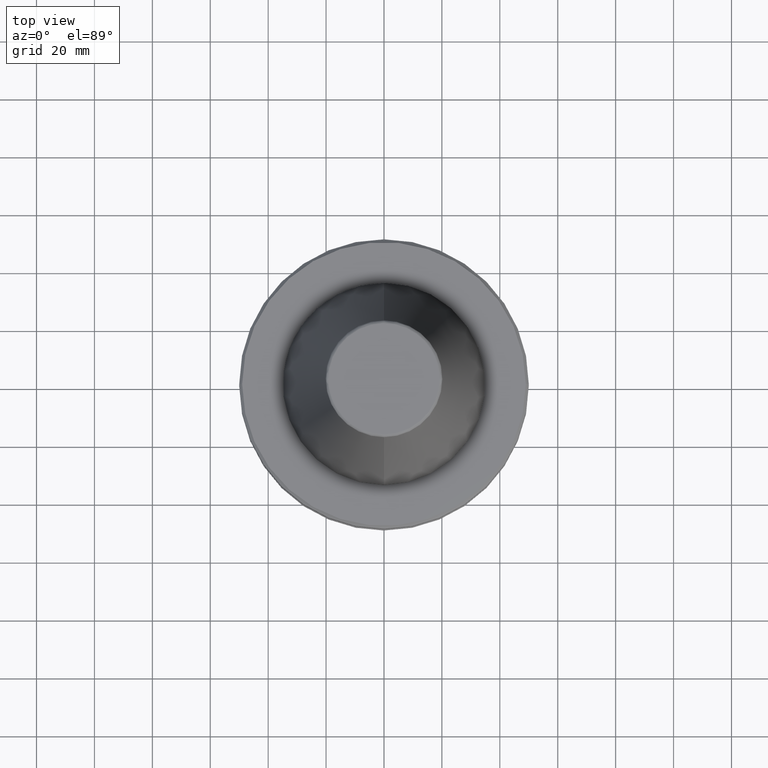
[diagram: clean part render]
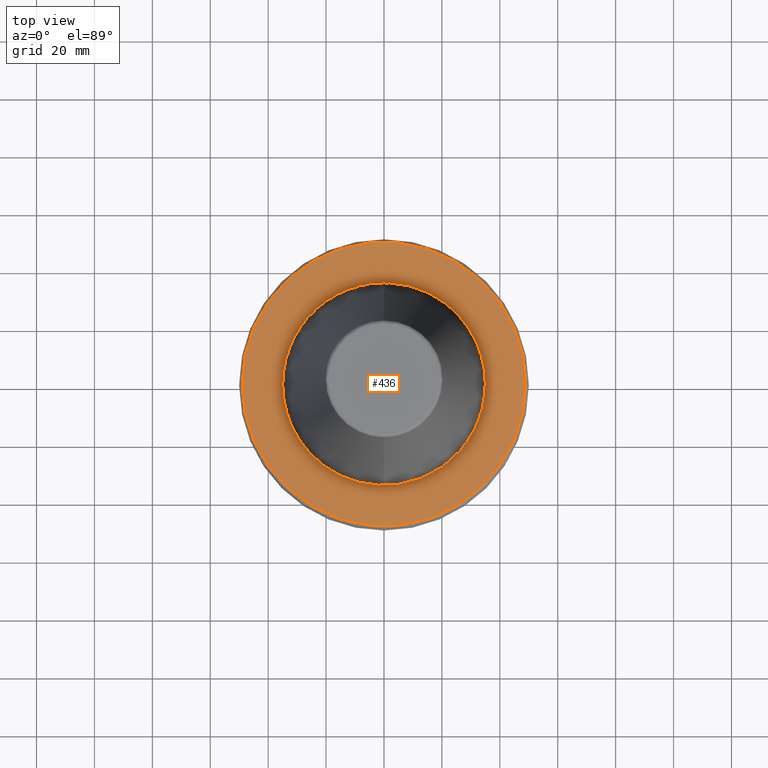
[diagram: same view with one face highlighted and labeled with its STEP entity id]
A machine part, top view. The second image highlights one B-rep face of the part: STEP entity #436.
In plain terms, the highlighted planar face has unit normal (0, 0, -1).
Its self-contained STEP definition (entity closure, byte-faithful):
#1 = CARTESIAN_POINT ( 'NONE',  ( -16.31681264913098400, -30.96391071001742300, -3.000000000000000400 ) ) ;
#2 = CARTESIAN_POINT ( 'NONE',  ( -16.20130181837652500, -31.02469293796509900, -3.000000000000000000 ) ) ;
#4 = CARTESIAN_POINT ( 'NONE',  ( -15.93105997918582300, -31.16497374094656800, -2.999999999999999600 ) ) ;
#5 = CARTESIAN_POINT ( 'NONE',  ( -15.38771003108312200, -31.43935776465695800, -2.999999999999999100 ) ) ;
#6 = CARTESIAN_POINT ( 'NONE',  ( -14.28954505599244700, -31.96341548306762100, -3.000000000000000400 ) ) ;
#7 = CARTESIAN_POINT ( 'NONE',  ( -13.32860637068289500, -32.37024724911648800, -2.999999999999999600 ) ) ;
#9 = CARTESIAN_POINT ( 'NONE',  ( -12.59807514622767900, -32.65419079164444600, -2.999999999999999600 ) ) ;
#11 = CARTESIAN_POINT ( 'NONE',  ( -12.51316340655520200, -32.68683094002342000, -3.000000000000000000 ) ) ;
#15 = CARTESIAN_POINT ( 'NONE',  ( -10.33211234674053400, -33.45352029581429300, -3.000000000000000900 ) ) ;
#17 = CARTESIAN_POINT ( 'NONE',  ( -9.306096128273511100, -33.74764709405581400, -3.000000000000000000 ) ) ;
#18 = CARTESIAN_POINT ( 'NONE',  ( -8.529045675709575400, -33.94500565136225100, -2.999999999999999600 ) ) ;
#19 = CARTESIAN_POINT ( 'NONE',  ( -31.43019403501628200, -15.39945816482536000, -3.000000000000000000 ) ) ;
#20 = CARTESIAN_POINT ( 'NONE',  ( -8.440048565543110100, -33.96724914245334000, -3.000000000000000400 ) ) ;
#21 = CARTESIAN_POINT ( 'NONE',  ( -8.264513553391283900, -34.01039078255229200, -2.999999999999999100 ) ) ;
#22 = CARTESIAN_POINT ( 'NONE',  ( -8.001012072351960200, -34.07407266311894000, -3.000000000000000000 ) ) ;
#23 = CARTESIAN_POINT ( 'NONE',  ( -7.384782543579077300, -34.21544966070211300, -3.000000000000000400 ) ) ;
#24 = CARTESIAN_POINT ( 'NONE',  ( -6.146752527308772900, -34.46934742757913700, -3.000000000000000400 ) ) ;
#25 = CARTESIAN_POINT ( 'NONE',  ( -5.076033726977992300, -34.63750626497769500, -3.000000000000000000 ) ) ;
#26 = CARTESIAN_POINT ( 'NONE',  ( -4.178462385059922300, -34.75015650729616800, -2.999999999999999600 ) ) ;
#33 = CARTESIAN_POINT ( 'NONE',  ( -3.996225051771799700, -34.77159822717918300, -2.999999999999999100 ) ) ;
#35 = CARTESIAN_POINT ( 'NONE',  ( -3.634190826210345300, -34.81131520087077300, -2.999999999999999100 ) ) ;
#38 = CARTESIAN_POINT ( 'NONE',  ( -3.090856863978451500, -34.86663586675307200, -3.000000000000000400 ) ) ;
#39 = CARTESIAN_POINT ( 'NONE',  ( -1.821099251542753100, -34.96593385789258000, -3.000000000000000400 ) ) ;
#40 = CARTESIAN_POINT ( 'NONE',  ( -0.7293440970641801300, -34.99998888586503700, -3.000000000000000400 ) ) ;
#44 = CARTESIAN_POINT ( 'NONE',  ( 1.458688194128373600, -35.00002222732811700, -3.000000000000000400 ) ) ;
#45 = CARTESIAN_POINT ( 'NONE',  ( 2.910637356120746600, -34.90923103622874600, -3.000000000000000400 ) ) ;
#47 = CARTESIAN_POINT ( 'NONE',  ( 4.538894065608880100, -34.70492588665793900, -3.000000000000000400 ) ) ;
#48 = CARTESIAN_POINT ( 'NONE',  ( -31.40727628208224300, -15.44620768847489800, -3.000000000000000900 ) ) ;
#49 = CARTESIAN_POINT ( 'NONE',  ( 4.716577416171070100, -34.68122302318685300, -3.000000000000000000 ) ) ;
#50 = CARTESIAN_POINT ( 'NONE',  ( 5.074414825710428900, -34.63069111573602800, -3.000000000000000000 ) ) ;
#55 = CARTESIAN_POINT ( 'NONE',  ( 5.610407586831293300, -34.55076478275460500, -3.000000000000000000 ) ) ;
#58 = CARTESIAN_POINT ( 'NONE',  ( 6.855713890462732600, -34.33537070316143800, -3.000000000000000000 ) ) ;
#61 = CARTESIAN_POINT ( 'NONE',  ( 7.913959055317271800, -34.10120554470484000, -3.000000000000000400 ) ) ;
#62 = CARTESIAN_POINT ( 'NONE',  ( 8.703062809829111400, -33.90081084503112400, -3.000000000000000400 ) ) ;
#64 = CARTESIAN_POINT ( 'NONE',  ( 8.787877669925039800, -33.87892242718853500, -3.000000000000000000 ) ) ;
#65 = CARTESIAN_POINT ( 'NONE',  ( 8.960064383621546100, -33.83379725612208900, -2.999999999999999600 ) ) ;
#67 = CARTESIAN_POINT ( 'NONE',  ( 9.218038112821140800, -33.76513882404014300, -3.000000000000000400 ) ) ;
#68 = CARTESIAN_POINT ( 'NONE',  ( 9.817832424870530900, -33.59814108747279700, -3.000000000000000400 ) ) ;
#69 = CARTESIAN_POINT ( 'NONE',  ( 11.00884349130415200, -33.23696670083341300, -3.000000000000000000 ) ) ;
#70 = CARTESIAN_POINT ( 'NONE',  ( 12.01500573510698000, -32.88079623199174500, -3.000000000000000900 ) ) ;
#72 = CARTESIAN_POINT ( 'NONE',  ( 12.76227522567467300, -32.59037216878505200, -3.000000000000000400 ) ) ;
#73 = CARTESIAN_POINT ( 'NONE',  ( 12.84137432955967900, -32.55928314894305200, -3.000000000000000900 ) ) ;
#75 = CARTESIAN_POINT ( 'NONE',  ( 13.00310114223340600, -32.49503895034361300, -3.000000000000000400 ) ) ;
#78 = CARTESIAN_POINT ( 'NONE',  ( -22.12541106132134400, -27.12328015341382000, -3.000000000000000000 ) ) ;
#79 = CARTESIAN_POINT ( 'NONE',  ( 13.24528912663631900, -32.39778681404331500, -2.999999999999999600 ) ) ;
#81 = AXIS2_PLACEMENT_3D ( 'NONE', #1294, #1033, #1037 ) ;
#83 = CARTESIAN_POINT ( 'NONE',  ( 13.80757878132265600, -32.16466429386797200, -2.999999999999999600 ) ) ;
#84 = CARTESIAN_POINT ( 'NONE',  ( 14.92089552168023500, -31.67361577828537000, -3.000000000000000000 ) ) ;
#86 = DIRECTION ( 'NONE',  ( 0.0000000000000000000, 0.0000000000000000000, -1.000000000000000000 ) ) ;
#87 = CARTESIAN_POINT ( 'NONE',  ( 15.85585975224651800, -31.21019680738842800, -3.000000000000000900 ) ) ;
#89 = CARTESIAN_POINT ( 'NONE',  ( 16.50900876445681900, -30.86186269924389000, -2.999999999999999100 ) ) ;
#90 = EDGE_CURVE ( 'NONE', #263, #1032, #985, .T. ) ;
#91 = CARTESIAN_POINT ( 'NONE',  ( 16.54406685764202600, -30.84308244733974300, -3.000000000000000000 ) ) ;
#93 = CARTESIAN_POINT ( 'NONE',  ( 16.61741978276733500, -30.80362924646071600, -3.000000000000000000 ) ) ;
#95 = CARTESIAN_POINT ( 'NONE',  ( 16.72732347226539300, -30.74426673782285800, -3.000000000000000000 ) ) ;
#96 = CARTESIAN_POINT ( 'NONE',  ( 16.98288552709809500, -30.60447526643263300, -3.000000000000000400 ) ) ;
#98 = CARTESIAN_POINT ( 'NONE',  ( 17.49049008744578500, -30.31977651871130800, -3.000000000000000000 ) ) ;
#100 = CARTESIAN_POINT ( 'NONE',  ( 18.49162101087045000, -29.72991580350510400, -3.000000000000000400 ) ) ;
#103 = CARTESIAN_POINT ( 'NONE',  ( 20.43757006863674200, -28.46834149403862600, -3.000000000000000000 ) ) ;
#104 = CARTESIAN_POINT ( 'NONE',  ( 22.00899019400845800, -27.24667286468887200, -3.000000000000001300 ) ) ;
#105 = CARTESIAN_POINT ( 'NONE',  ( 23.02939719805747400, -26.35616285953667800, -2.999999999999999600 ) ) ;
#108 = CARTESIAN_POINT ( 'NONE',  ( 23.04259779421425900, -26.34462197110879000, -2.999999999999999600 ) ) ;
#110 = CARTESIAN_POINT ( 'NONE',  ( -33.34820381990719800, -10.63058258967903700, -3.000000000000000400 ) ) ;
#112 = CARTESIAN_POINT ( 'NONE',  ( 23.07146250265448700, -26.31934884647105100, -2.999999999999999100 ) ) ;
#115 = CARTESIAN_POINT ( 'NONE',  ( 23.11472510830523300, -26.28140707723003900, -3.000000000000000400 ) ) ;
#116 = CARTESIAN_POINT ( 'NONE',  ( 23.21542998908966700, -26.19265170634334100, -3.000000000000000400 ) ) ;
#117 = CARTESIAN_POINT ( 'NONE',  ( 23.41587495438947600, -26.01424266060606500, -3.000000000000000900 ) ) ;
#118 = CARTESIAN_POINT ( 'NONE',  ( 23.81290569991274700, -25.65383135327589400, -3.000000000000000400 ) ) ;
#119 = CARTESIAN_POINT ( 'NONE',  ( 24.59153045065387000, -24.91863587519317500, -3.000000000000000000 ) ) ;
#120 = CARTESIAN_POINT ( 'NONE',  ( 26.08703299091450800, -23.39075346533816100, -3.000000000000000400 ) ) ;
#121 = CARTESIAN_POINT ( 'NONE',  ( 27.26304037761514100, -21.98258319342317800, -3.000000000000000900 ) ) ;
#122 = CARTESIAN_POINT ( 'NONE',  ( -11.51154192795338600, -33.05615376799148200, -3.000000000000000400 ) ) ;
#125 = CARTESIAN_POINT ( 'NONE',  ( 28.01151499236742000, -20.98464713741145400, -3.000000000000000000 ) ) ;
#133 = CARTESIAN_POINT ( 'NONE',  ( 28.02081961552850900, -20.97222000887952100, -2.999999999999999600 ) ) ;
#134 = CARTESIAN_POINT ( 'NONE',  ( 28.04160634720194500, -20.94441984864047900, -3.000000000000000900 ) ) ;
#135 = CARTESIAN_POINT ( 'NONE',  ( 28.07275355915129800, -20.90269943897495600, -2.999999999999999600 ) ) ;
#139 = CARTESIAN_POINT ( 'NONE',  ( 28.14520018810765500, -20.80521063127349600, -3.000000000000000000 ) ) ;
#141 = CARTESIAN_POINT ( 'NONE',  ( 28.28917265031858400, -20.60966827527617100, -3.000000000000000400 ) ) ;
#142 = CARTESIAN_POINT ( 'NONE',  ( 28.57343439193305200, -20.21632460090400600, -3.000000000000000400 ) ) ;
#145 = CARTESIAN_POINT ( 'NONE',  ( 29.12722514393267300, -19.42060140264944900, -3.000000000000000400 ) ) ;
#146 = CARTESIAN_POINT ( 'NONE',  ( 30.17587572301453100, -17.79301160809964700, -3.000000000000000000 ) ) ;
#148 = CARTESIAN_POINT ( 'NONE',  ( 30.97369463379775600, -16.33597453041573600, -2.999999999999999600 ) ) ;
#150 = CARTESIAN_POINT ( 'NONE',  ( 31.46828321035928500, -15.32147090344051700, -3.000000000000001300 ) ) ;
#153 = CARTESIAN_POINT ( 'NONE',  ( 31.47425896893680500, -15.30919001070397400, -3.000000000000000400 ) ) ;
#154 = CARTESIAN_POINT ( 'NONE',  ( 31.48781504734417400, -15.28129018973698700, -3.000000000000000400 ) ) ;
#156 = CARTESIAN_POINT ( 'NONE',  ( 31.50812042976106800, -15.23942927816337100, -3.000000000000000400 ) ) ;
#160 = CARTESIAN_POINT ( 'NONE',  ( 31.55529850904122900, -15.14167555696295700, -3.000000000000000400 ) ) ;
#161 = CARTESIAN_POINT ( 'NONE',  ( 31.64885008216446800, -14.94585507111428200, -3.000000000000000000 ) ) ;
#162 = CARTESIAN_POINT ( 'NONE',  ( 31.83273488666294100, -14.55296192562539300, -3.000000000000000000 ) ) ;
#164 = CARTESIAN_POINT ( 'NONE',  ( 32.18763112866766100, -13.76216693948169800, -3.000000000000000400 ) ) ;
#165 = CARTESIAN_POINT ( 'NONE',  ( 32.84593014470811300, -12.16054218653049900, -2.999999999999999100 ) ) ;
#166 = CARTESIAN_POINT ( 'NONE',  ( 33.32191192765318300, -10.75337563143434500, -3.000000000000000000 ) ) ;
#167 = CARTESIAN_POINT ( 'NONE',  ( 33.60434512392721000, -9.785103505669560800, -3.000000000000000400 ) ) ;
#168 = CARTESIAN_POINT ( 'NONE',  ( 33.60769513102027900, -9.773589787781064700, -3.000000000000000400 ) ) ;
#170 = CARTESIAN_POINT ( 'NONE',  ( 33.61536653871440400, -9.747174476289032400, -3.000000000000000400 ) ) ;
#172 = CARTESIAN_POINT ( 'NONE',  ( 33.62684992476015800, -9.707546409689978600, -3.000000000000000400 ) ) ;
#174 = CARTESIAN_POINT ( 'NONE',  ( 33.65347841373202400, -9.615045225431767800, -3.000000000000000000 ) ) ;
#177 = CARTESIAN_POINT ( 'NONE',  ( 33.70607107780303800, -9.429900074807077800, -3.000000000000000400 ) ) ;
#179 = CARTESIAN_POINT ( 'NONE',  ( 33.80859915045408600, -9.059038645124584100, -3.000000000000000400 ) ) ;
#182 = CARTESIAN_POINT ( 'NONE',  ( 34.00302627379229400, -8.315031272027104200, -3.000000000000000000 ) ) ;
#183 = CARTESIAN_POINT ( 'NONE',  ( 34.34936443261315700, -6.817878470902364500, -3.000000000000000400 ) ) ;
#185 = CARTESIAN_POINT ( 'NONE',  ( 34.57334098956435800, -5.518939404344315000, -3.000000000000000400 ) ) ;
#187 = CARTESIAN_POINT ( 'NONE',  ( 34.69209242963562900, -4.632378297428514800, -3.000000000000000900 ) ) ;
#188 = CARTESIAN_POINT ( 'NONE',  ( 34.69348558401766500, -4.621929964621081400, -3.000000000000000400 ) ) ;
#189 = CARTESIAN_POINT ( 'NONE',  ( 34.69668677893719200, -4.597840932822943000, -2.999999999999999600 ) ) ;
#190 = CARTESIAN_POINT ( 'NONE',  ( 34.70146966662205300, -4.561706087779882100, -3.000000000000000400 ) ) ;
#192 = CARTESIAN_POINT ( 'NONE',  ( 34.71249740502592100, -4.477382367925181400, -3.000000000000000400 ) ) ;
#193 = CARTESIAN_POINT ( 'NONE',  ( 34.73402355039023300, -4.308698602531989300, -3.000000000000000000 ) ) ;
#194 = CARTESIAN_POINT ( 'NONE',  ( 34.77495851534536100, -3.971185769010691300, -3.000000000000000000 ) ) ;
#196 = CARTESIAN_POINT ( 'NONE',  ( 34.84835914216141400, -3.295578891028354100, -3.000000000000000000 ) ) ;
#197 = CARTESIAN_POINT ( 'NONE',  ( 34.96128318341691000, -1.942040291304626000, -3.000000000000000400 ) ) ;
#205 = CARTESIAN_POINT ( 'NONE',  ( 34.99999999746264500, 0.0000000000000000000, -3.000000000159716700 ) ) ;
#208 = CARTESIAN_POINT ( 'NONE',  ( -34.68865228381440600, -4.658064510570269200, -3.000000000000001300 ) ) ;
#210 = CARTESIAN_POINT ( 'NONE',  ( 34.99999999756165200, -0.7778789022402620200, -3.000000000000000400 ) ) ;
#216 = DIRECTION ( 'NONE',  ( -1.000000000000000000, 0.0000000000000000000, 0.0000000000000000000 ) ) ;
#217 = DIRECTION ( 'NONE',  ( 0.0000000000000000000, 0.0000000000000000000, -1.000000000000000000 ) ) ;
#219 = CARTESIAN_POINT ( 'NONE',  ( 0.0000000000000000000, 0.0000000000000000000, -2.999999998368790200 ) ) ;
#230 = FACE_BOUND ( 'NONE', #330, .T. ) ;
#239 = CARTESIAN_POINT ( 'NONE',  ( -27.34504911193762300, -21.84998383306892900, -3.000000000000000000 ) ) ;
#263 = VERTEX_POINT ( 'NONE', #897 ) ;
#266 = CARTESIAN_POINT ( 'NONE',  ( -12.34676743546907200, -32.75005218168156800, -3.000000000000000900 ) ) ;
#271 = CARTESIAN_POINT ( 'NONE',  ( -31.24523745608797000, -15.77247123738006700, -3.000000000000000900 ) ) ;
#319 = CARTESIAN_POINT ( 'NONE',  ( -22.90369262083002900, -26.46552993239669500, -3.000000000000000000 ) ) ;
#324 = CARTESIAN_POINT ( 'NONE',  ( -30.56940405858319200, -17.06067200485967600, -3.000000000000000400 ) ) ;
#325 = CARTESIAN_POINT ( 'NONE',  ( -34.99999999756165900, -1.555353261112772900, -3.000000000000000900 ) ) ;
#330 = EDGE_LOOP ( 'NONE', ( #1221, #1321 ) ) ;
#335 = CARTESIAN_POINT ( 'NONE',  ( -34.45741785918716000, -6.166985756922089800, -3.000000000000000400 ) ) ;
#354 = CARTESIAN_POINT ( 'NONE',  ( 34.99999999746264500, 0.0000000000000000000, -3.000000000159716700 ) ) ;
#356 = AXIS2_PLACEMENT_3D ( 'NONE', #219, #217, #216 ) ;
#379 = CARTESIAN_POINT ( 'NONE',  ( -16.39375162511677100, -30.92324213942722700, -3.000000000000000000 ) ) ;
#394 = CARTESIAN_POINT ( 'NONE',  ( -19.34754944742795900, -29.22008181521108500, -3.000000000000000400 ) ) ;
#396 = CARTESIAN_POINT ( 'NONE',  ( -31.45387465059782500, -15.35102686285475600, -3.000000000000000000 ) ) ;
#423 = CARTESIAN_POINT ( 'NONE',  ( -31.02488020688020100, -16.20486765820944100, -3.000000000000000900 ) ) ;
#436 = ADVANCED_FACE ( 'NONE', ( #1352, #230 ), #754, .F. ) ;
#449 = CARTESIAN_POINT ( 'NONE',  ( -21.21829034195089400, -27.84945566702257500, -3.000000000000000000 ) ) ;
#459 = ORIENTED_EDGE ( 'NONE', *, *, #1208, .F. ) ;
#492 = B_SPLINE_CURVE_WITH_KNOTS ( 'NONE', 3,
 ( #205, #210, #197, #196, #194, #193, #192, #190, #189, #188, #187, #185, #183, #182, #179, #177, #174, #172, #170, #168, #167, #166, #165, #164, #162, #161, #160, #156, #154, #153, #150, #148, #146, #145, #142, #141, #139, #135, #134, #133, #125, #121, #120, #119, #118, #117, #116, #115, #112, #108, #105, #104, #103, #100, #98, #96, #95, #93, #91, #89, #87, #84, #83, #79, #75, #73, #72, #70, #69, #68, #67, #65, #64, #62, #61, #58, #55, #50, #49, #47, #45, #44, #40, #39, #38, #35, #33, #26, #25, #24, #23, #22, #21, #20, #18, #17, #15, #122, #939, #266, #11, #9, #7, #6, #5, #4, #2, #1, #379, #768, #990, #394, #449, #78, #630, #494, #319, #816, #937, #1318, #1393, #1243, #728, #239, #1189, #1101, #879, #1394, #1055, #552, #1396, #1285, #324, #423, #271, #1091, #48, #19, #1330, #396, #1327, #1234, #621, #110, #1273, #1210, #1119, #1063, #547, #1348, #1185, #846, #335, #688, #894, #1412, #1197, #1065, #946, #208, #992, #325, #1095 ),
 .UNSPECIFIED., .F., .F.,
 ( 4, 1, 1, 1, 1, 1, 1, 2, 2, 1, 1, 1, 1, 1, 1, 2, 2, 1, 1, 1, 1, 1, 1, 2, 2, 1, 1, 1, 1, 1, 1, 2, 2, 1, 1, 1, 1, 1, 1, 2, 2, 1, 1, 1, 1, 1, 2, 2, 1, 1, 1, 2, 2, 1, 1, 1, 2, 2, 1, 1, 2, 2, 2, 1, 1, 2, 2, 1, 1, 1, 2, 2, 1, 1, 1, 2, 2, 1, 1, 1, 1, 2, 2, 1, 1, 1, 1, 1, 1, 2, 2, 1, 1, 1, 1, 1, 1, 2, 2, 1, 1, 1, 1, 1, 1, 2, 2, 1, 1, 1, 1, 1, 1, 2, 2, 1, 1, 1, 1, 1, 1, 2, 2, 4 ),
 ( 0.0000000000000000000, 0.03124999999999482400, 0.04687499999999222800, 0.05468749999999091000, 0.05859374999999027200, 0.06054687499998995900, 0.06152343749998975800, 0.06201171874998963300, 0.06249999999998950100, 0.09374999999998083500, 0.1093749999999765300, 0.1171874999999743700, 0.1210937499999733000, 0.1230468749999727400, 0.1240234374999725100, 0.1245117187499723600, 0.1249999999999722000, 0.1562499999999600900, 0.1718749999999539300, 0.1796874999999508200, 0.1835937499999492400, 0.1855468749999484900, 0.1865234374999481000, 0.1870117187499479900, 0.1874999999999478800, 0.2187499999999437700, 0.2343749999999417400, 0.2421874999999407700, 0.2460937499999402700, 0.2480468749999401000, 0.2490234374999400500, 0.2495117187499400500, 0.2499999999999400500, 0.2812499999999426000, 0.2968749999999438800, 0.3046874999999445400, 0.3085937499999448200, 0.3105468749999449900, 0.3115234374999451000, 0.3120117187499452100, 0.3124999999999453200, 0.3437499999999515400, 0.3593749999999547600, 0.3671874999999563100, 0.3710937499999572000, 0.3730468749999575900, 0.3740234374999578100, 0.3749999999999580300, 0.3906249999999613100, 0.3984374999999629700, 0.4023437499999637500, 0.4042968749999642000, 0.4062499999999645800, 0.4218749999999681900, 0.4296874999999700200, 0.4335937499999709100, 0.4355468749999713600, 0.4374999999999718000, 0.4531249999999754600, 0.4609374999999773000, 0.4648437499999781800, 0.4687499999999790700, 0.4999999999999863400, 0.5156249999999900100, 0.5234374999999917800, 0.5273437499999926700, 0.5312499999999935600, 0.5468749999999972200, 0.5546874999999990000, 0.5585937500000000000, 0.5605468750000004400, 0.5625000000000008900, 0.5781250000000043300, 0.5859375000000062200, 0.5898437500000071100, 0.5917968750000075500, 0.5937500000000079900, 0.6093750000000118800, 0.6171875000000137700, 0.6210937500000147700, 0.6230468750000152100, 0.6240234375000155400, 0.6250000000000157700, 0.6562500000000222000, 0.6718750000000255400, 0.6796875000000270900, 0.6835937500000278700, 0.6855468750000283100, 0.6865234375000286400, 0.6870117187500287500, 0.6875000000000288700, 0.7187500000000341900, 0.7343750000000367500, 0.7421875000000380800, 0.7460937500000386400, 0.7480468750000389700, 0.7490234375000390800, 0.7495117187500391900, 0.7500000000000391900, 0.7812500000000373000, 0.7968750000000364200, 0.8046875000000359700, 0.8085937500000358600, 0.8105468750000357500, 0.8115234375000355300, 0.8120117187500354200, 0.8125000000000354200, 0.8437500000000286400, 0.8593750000000253100, 0.8671875000000235400, 0.8710937500000226500, 0.8730468750000220900, 0.8740234375000218700, 0.8745117187500217600, 0.8750000000000216500, 0.9062500000000155400, 0.9218750000000124300, 0.9296875000000107700, 0.9335937500000099900, 0.9355468750000095500, 0.9365234375000094400, 0.9370117187500093300, 0.9375000000000092100, 1.000000000000000000 ),
 .UNSPECIFIED. ) ;
#494 = CARTESIAN_POINT ( 'NONE',  ( -22.79339234489685100, -26.56077120091968500, -3.000000000000000400 ) ) ;
#503 = CARTESIAN_POINT ( 'NONE',  ( 34.63737523278182100, 5.027367414831864800, -3.000000000000000400 ) ) ;
#512 = CARTESIAN_POINT ( 'NONE',  ( -34.69348558401767900, 4.621929964621086700, -3.000000000000000000 ) ) ;
#547 = CARTESIAN_POINT ( 'NONE',  ( -33.59130476667781600, -9.829777798166716700, -3.000000000000002200 ) ) ;
#552 = CARTESIAN_POINT ( 'NONE',  ( -27.98958195459307800, -21.01389114367906400, -3.000000000000000000 ) ) ;
#571 = CIRCLE ( 'NONE', #767, 48.99999999836879300 ) ;
#614 = VERTEX_POINT ( 'NONE', #651 ) ;
#621 = CARTESIAN_POINT ( 'NONE',  ( -33.07921083033410500, -11.45456747856882600, -3.000000000000000900 ) ) ;
#630 = CARTESIAN_POINT ( 'NONE',  ( -22.57190898903378000, -26.74997678673083400, -3.000000000000000000 ) ) ;
#644 = CIRCLE ( 'NONE', #356, 48.99999999836879300 ) ;
#648 = CARTESIAN_POINT ( 'NONE',  ( -9.817832424864025900, 33.59814108747288900, -3.000000000000001300 ) ) ;
#651 = CARTESIAN_POINT ( 'NONE',  ( -48.99999999836879300, 0.0000000000000000000, -2.999999998368790200 ) ) ;
#688 = CARTESIAN_POINT ( 'NONE',  ( -34.58093721138162400, -5.407978663006394600, -3.000000000000000000 ) ) ;
#714 = CARTESIAN_POINT ( 'NONE',  ( 34.68292355065506200, 4.700540735750390600, -3.000000000000000400 ) ) ;
#718 = CARTESIAN_POINT ( 'NONE',  ( 34.68660639622289200, 4.673281689959345900, -3.000000000000000000 ) ) ;
#728 = CARTESIAN_POINT ( 'NONE',  ( -26.66946449319050000, -22.68085943477386800, -3.000000000000000400 ) ) ;
#749 = CARTESIAN_POINT ( 'NONE',  ( 21.21829034200436200, 27.84945566697591300, -3.000000000000000400 ) ) ;
#754 = PLANE ( 'NONE',  #81 ) ;
#767 = AXIS2_PLACEMENT_3D ( 'NONE', #821, #86, #910 ) ;
#768 = CARTESIAN_POINT ( 'NONE',  ( -16.43381908408043300, -30.90196383169872600, -2.999999999999999600 ) ) ;
#776 = CARTESIAN_POINT ( 'NONE',  ( 34.99999999756165200, 1.555353261179500700, -3.000000000000000400 ) ) ;
#780 = CARTESIAN_POINT ( 'NONE',  ( 7.384782543475078700, 34.21544966071439800, -3.000000000000000400 ) ) ;
#788 = CARTESIAN_POINT ( 'NONE',  ( 5.076033726898763200, 34.63750626498704600, -3.000000000000000400 ) ) ;
#789 = CARTESIAN_POINT ( 'NONE',  ( 34.58093721136781100, 5.407978663080713800, -3.000000000000001300 ) ) ;
#793 = CARTESIAN_POINT ( 'NONE',  ( 10.33211234654035800, 33.45352029588369200, -3.000000000000000400 ) ) ;
#799 = CARTESIAN_POINT ( 'NONE',  ( -34.77495851534537500, 3.971185769010713100, -3.000000000000000000 ) ) ;
#804 = CARTESIAN_POINT ( 'NONE',  ( 12.59807514622550300, 32.65419079164473000, -3.000000000000000400 ) ) ;
#809 = CARTESIAN_POINT ( 'NONE',  ( 33.47625151031750300, 10.21611600741511000, -2.999999999999999600 ) ) ;
#813 = CARTESIAN_POINT ( 'NONE',  ( 6.146752527170146900, 34.46934742759548700, -3.000000000000000000 ) ) ;
#816 = CARTESIAN_POINT ( 'NONE',  ( -22.95086958151608800, -26.42457542968310600, -2.999999999999999600 ) ) ;
#820 = CARTESIAN_POINT ( 'NONE',  ( -31.50812042976355100, 15.23942927815674500, -2.999999999999999600 ) ) ;
#821 = CARTESIAN_POINT ( 'NONE',  ( 0.0000000000000000000, 0.0000000000000000000, -2.999999998368790200 ) ) ;
#832 = CARTESIAN_POINT ( 'NONE',  ( -34.69668677893720600, 4.597840932822951000, -3.000000000000000000 ) ) ;
#840 = CARTESIAN_POINT ( 'NONE',  ( 9.306096128159152800, 33.74764709409547000, -3.000000000000000000 ) ) ;
#846 = CARTESIAN_POINT ( 'NONE',  ( -34.16780591728135600, -7.676138334701414000, -3.000000000000000400 ) ) ;
#850 = CARTESIAN_POINT ( 'NONE',  ( -12.01500573510202200, 32.88079623199179500, -3.000000000000000400 ) ) ;
#858 = CARTESIAN_POINT ( 'NONE',  ( -14.92089552162903000, 31.67361577830848100, -3.000000000000000000 ) ) ;
#862 = CARTESIAN_POINT ( 'NONE',  ( -33.70607107780457300, 9.429900074795433800, -2.999999999999999100 ) ) ;
#863 = CARTESIAN_POINT ( 'NONE',  ( 22.12541106135253700, 27.12328015338661700, -3.000000000000000400 ) ) ;
#870 = CARTESIAN_POINT ( 'NONE',  ( -33.80859915045699200, 9.059038645102841500, -2.999999999999999600 ) ) ;
#874 = CARTESIAN_POINT ( 'NONE',  ( 33.07921083030966300, 11.45456747860047900, -3.000000000000000900 ) ) ;
#876 = CARTESIAN_POINT ( 'NONE',  ( 33.59614711628069000, 9.813210838103486800, -3.000000000000000400 ) ) ;
#877 = CARTESIAN_POINT ( 'NONE',  ( 34.45741785916345600, 6.166985757049483000, -3.000000000000000400 ) ) ;
#879 = CARTESIAN_POINT ( 'NONE',  ( -27.91925954473984800, -21.10729296038182000, -3.000000000000000900 ) ) ;
#894 = CARTESIAN_POINT ( 'NONE',  ( -34.63737523278923200, -5.027367414792062000, -2.999999999999999600 ) ) ;
#897 = CARTESIAN_POINT ( 'NONE',  ( -34.99999999746264500, 0.0000000000000000000, -3.000000000159716700 ) ) ;
#906 = CARTESIAN_POINT ( 'NONE',  ( -13.80757878128427800, 32.16466429388529500, -3.000000000000000000 ) ) ;
#910 = DIRECTION ( 'NONE',  ( -1.000000000000000000, 0.0000000000000000000, 0.0000000000000000000 ) ) ;
#924 = CARTESIAN_POINT ( 'NONE',  ( 33.84658441702918500, 8.954506355662980300, -3.000000000000000000 ) ) ;
#926 = CARTESIAN_POINT ( 'NONE',  ( -28.01151499236678400, 20.98464713741218500, -3.000000000000000000 ) ) ;
#927 = CARTESIAN_POINT ( 'NONE',  ( 34.68865228381437800, 4.658064510569746000, -3.000000000000000400 ) ) ;
#928 = CARTESIAN_POINT ( 'NONE',  ( 34.89675515984234300, 3.104025827537335100, -3.000000000000000400 ) ) ;
#937 = CARTESIAN_POINT ( 'NONE',  ( -22.98229986949732500, -26.39724202427322900, -2.999999999999999600 ) ) ;
#938 = CARTESIAN_POINT ( 'NONE',  ( 33.56946592622532000, 9.904183635402265700, -3.000000000000000400 ) ) ;
#939 = CARTESIAN_POINT ( 'NONE',  ( -12.09685938347682200, -32.84391585494481800, -3.000000000000000400 ) ) ;
#941 = CARTESIAN_POINT ( 'NONE',  ( -34.70146966662203200, 4.561706087779892700, -3.000000000000000400 ) ) ;
#942 = CARTESIAN_POINT ( 'NONE',  ( 22.57190898905051000, 26.74997678671626700, -3.000000000000001300 ) ) ;
#946 = CARTESIAN_POINT ( 'NONE',  ( -34.68660639622348200, -4.673281689956323400, -3.000000000000001800 ) ) ;
#948 = CARTESIAN_POINT ( 'NONE',  ( -23.41587495440640500, 26.01424266058695900, -3.000000000000000400 ) ) ;
#950 = CARTESIAN_POINT ( 'NONE',  ( -23.81290569994435600, 25.65383135324021400, -3.000000000000000400 ) ) ;
#954 = CARTESIAN_POINT ( 'NONE',  ( -20.43757006867235800, 28.46834149402769000, -3.000000000000000000 ) ) ;
#955 = CARTESIAN_POINT ( 'NONE',  ( 31.44545057023151500, 15.36827843998939100, -3.000000000000000000 ) ) ;
#957 = CARTESIAN_POINT ( 'NONE',  ( 31.43019403501644900, 15.39945816482603100, -2.999999999999999600 ) ) ;
#960 = CARTESIAN_POINT ( 'NONE',  ( -4.538894065589937000, 34.70492588665914000, -3.000000000000000000 ) ) ;
#965 = CARTESIAN_POINT ( 'NONE',  ( -34.71249740502592800, 4.477382367925177000, -2.999999999999999100 ) ) ;
#966 = CARTESIAN_POINT ( 'NONE',  ( -34.73402355039023300, 4.308698602532002700, -3.000000000000000000 ) ) ;
#976 = ORIENTED_EDGE ( 'NONE', *, *, #1324, .F. ) ;
#977 = CARTESIAN_POINT ( 'NONE',  ( 13.32860637070037800, 32.37024724911441400, -2.999999999999999600 ) ) ;
#983 = CARTESIAN_POINT ( 'NONE',  ( -32.18763112869785900, 13.76216693940088500, -3.000000000000000400 ) ) ;
#984 = CARTESIAN_POINT ( 'NONE',  ( -31.83273488668059100, 14.55296192557826500, -3.000000000000000000 ) ) ;
#985 = B_SPLINE_CURVE_WITH_KNOTS ( 'NONE', 3,
 ( #1290, #1109, #1398, #1427, #799, #966, #965, #941, #832, #512, #986, #1403, #1361, #1076, #870, #862, #1413, #1385, #1381, #1061, #1515, #1349, #1492, #983, #984, #1073, #1455, #820, #1292, #1391, #1510, #1460, #1447, #1454, #1514, #1161, #1159, #1362, #1248, #1250, #926, #1343, #1075, #1041, #950, #948, #1112, #1016, #1017, #1417, #1051, #1049, #954, #1225, #1228, #1177, #1419, #1420, #1400, #1432, #1435, #858, #906, #1012, #1375, #1291, #1310, #850, #1535, #648, #1130, #1486, #1370, #1356, #1410, #1406, #1083, #1178, #1176, #960, #1181, #1179, #1164, #1376, #1366, #1072, #1387, #1371, #788, #813, #780, #1449, #1358, #1422, #1054, #840, #793, #1192, #1068, #1067, #1414, #804, #977, #1444, #1277, #1278, #1281, #1438, #1354, #1415, #1497, #1390, #749, #863, #942, #1466, #1157, #1001, #1142, #1491, #1389, #1149, #1155, #1010, #1475, #1081, #1080, #1411, #1517, #1373, #1151, #1191, #1190, #1428, #1382, #1503, #1143, #957, #955, #1534, #1206, #1201, #874, #1102, #809, #1122, #938, #1202, #1472, #876, #924, #1124, #877, #789, #503, #1005, #1340, #714, #718, #927, #928, #776, #1317 ),
 .UNSPECIFIED., .F., .F.,
 ( 4, 1, 1, 1, 1, 1, 1, 2, 2, 1, 1, 1, 1, 1, 1, 2, 2, 1, 1, 1, 1, 1, 1, 2, 2, 1, 1, 1, 1, 1, 1, 2, 2, 1, 1, 1, 1, 1, 1, 2, 2, 1, 1, 1, 1, 1, 2, 2, 1, 1, 1, 2, 2, 1, 1, 1, 2, 2, 1, 1, 2, 2, 2, 1, 1, 2, 2, 1, 1, 1, 2, 2, 1, 1, 1, 2, 2, 1, 1, 1, 1, 2, 2, 1, 1, 1, 1, 1, 1, 2, 2, 1, 1, 1, 1, 1, 1, 2, 2, 1, 1, 1, 1, 1, 1, 2, 2, 1, 1, 1, 1, 1, 1, 2, 2, 1, 1, 1, 1, 1, 1, 2, 2, 4 ),
 ( 0.0000000000000000000, 0.03125000000001412100, 0.04687500000002115700, 0.05468750000002469600, 0.05859375000002648600, 0.06054687500002736000, 0.06152343750002779000, 0.06201171875002801200, 0.06250000000002822700, 0.09375000000004264600, 0.1093750000000497900, 0.1171875000000533500, 0.1210937500000551200, 0.1230468750000559400, 0.1240234375000563900, 0.1245117187500565500, 0.1250000000000567000, 0.1562500000000661100, 0.1718750000000707500, 0.1796875000000731400, 0.1835937500000743300, 0.1855468750000748800, 0.1865234375000751300, 0.1870117187500752700, 0.1875000000000753800, 0.2187500000000861300, 0.2343750000000915900, 0.2421875000000942900, 0.2460937500000955600, 0.2480468750000962000, 0.2490234375000965100, 0.2495117187500966200, 0.2500000000000967000, 0.2812500000001013100, 0.2968750000001036900, 0.3046875000001048600, 0.3085937500001054200, 0.3105468750001057500, 0.3115234375001058600, 0.3120117187501059200, 0.3125000000001059700, 0.3437500000001059700, 0.3593750000001060300, 0.3671875000001060800, 0.3710937500001061400, 0.3730468750001061900, 0.3740234375001061900, 0.3750000000001061400, 0.3906250000001063600, 0.3984375000001064100, 0.4023437500001064700, 0.4042968750001065300, 0.4062500000001065800, 0.4218750000001069100, 0.4296875000001070800, 0.4335937500001070800, 0.4355468750001071400, 0.4375000000001071900, 0.4531250000001076900, 0.4609375000001079700, 0.4648437500001081400, 0.4687500000001083000, 0.5000000000001095800, 0.5156250000001102500, 0.5234375000001104700, 0.5273437500001106900, 0.5312500000001109100, 0.5468750000001115800, 0.5546875000001119100, 0.5585937500001120200, 0.5605468750001121300, 0.5625000000001122400, 0.5781250000001129100, 0.5859375000001132400, 0.5898437500001133500, 0.5917968750001133500, 0.5937500000001133500, 0.6093750000001136900, 0.6171875000001140200, 0.6210937500001141300, 0.6230468750001141300, 0.6240234375001141300, 0.6250000000001141300, 0.6562500000001135800, 0.6718750000001134600, 0.6796875000001132400, 0.6835937500001131300, 0.6855468750001131300, 0.6865234375001131300, 0.6870117187501130200, 0.6875000000001129100, 0.7187500000001074700, 0.7343750000001048100, 0.7421875000001035800, 0.7460937500001029200, 0.7480468750001025800, 0.7490234375001023600, 0.7495117187501022500, 0.7500000000001020300, 0.7812500000000925900, 0.7968750000000878200, 0.8046875000000854900, 0.8085937500000842700, 0.8105468750000836000, 0.8115234375000832700, 0.8120117187500830400, 0.8125000000000828200, 0.8437500000000708300, 0.8593750000000648400, 0.8671875000000617300, 0.8710937500000602900, 0.8730468750000595100, 0.8740234375000591700, 0.8745117187500589500, 0.8750000000000587300, 0.9062500000000445200, 0.9218750000000375300, 0.9296875000000340800, 0.9335937500000323100, 0.9355468750000314200, 0.9365234375000309800, 0.9370117187500307500, 0.9375000000000305300, 1.000000000000000000 ),
 .UNSPECIFIED. ) ;
#986 = CARTESIAN_POINT ( 'NONE',  ( -34.69209242963556500, 4.632378297428956200, -3.000000000000000400 ) ) ;
#990 = CARTESIAN_POINT ( 'NONE',  ( -17.64720104221049700, -30.25480443532306700, -3.000000000000000900 ) ) ;
#992 = CARTESIAN_POINT ( 'NONE',  ( -34.89675515984235000, -3.104025827470608100, -3.000000000000000400 ) ) ;
#1001 = CARTESIAN_POINT ( 'NONE',  ( 22.95086958151861700, 26.42457542968090700, -3.000000000000000000 ) ) ;
#1005 = CARTESIAN_POINT ( 'NONE',  ( 34.66426382981679000, 4.836784865391325500, -3.000000000000000000 ) ) ;
#1010 = CARTESIAN_POINT ( 'NONE',  ( 27.34504911191198300, 21.84998383309130400, -3.000000000000000900 ) ) ;
#1012 = CARTESIAN_POINT ( 'NONE',  ( -13.24528912661391700, 32.39778681405341800, -3.000000000000000000 ) ) ;
#1016 = CARTESIAN_POINT ( 'NONE',  ( -23.11472510830966300, 26.28140707722504000, -3.000000000000000400 ) ) ;
#1017 = CARTESIAN_POINT ( 'NONE',  ( -23.07146250265704900, 26.31934884646817000, -2.999999999999999600 ) ) ;
#1032 = VERTEX_POINT ( 'NONE', #354 ) ;
#1033 = DIRECTION ( 'NONE',  ( 0.0000000000000000000, 0.0000000000000000000, -1.000000000000000000 ) ) ;
#1037 = DIRECTION ( 'NONE',  ( -1.000000000000000000, 0.0000000000000000000, -0.0000000000000000000 ) ) ;
#1041 = CARTESIAN_POINT ( 'NONE',  ( -24.59153045070805600, 24.91863587513200100, -3.000000000000000400 ) ) ;
#1049 = CARTESIAN_POINT ( 'NONE',  ( -22.00899019402879000, 27.24667286468263000, -3.000000000000000900 ) ) ;
#1051 = CARTESIAN_POINT ( 'NONE',  ( -23.02939719805716500, 26.35616285953678800, -3.000000000000000400 ) ) ;
#1054 = CARTESIAN_POINT ( 'NONE',  ( 8.529045675723864400, 33.94500565135729900, -2.999999999999999600 ) ) ;
#1055 = CARTESIAN_POINT ( 'NONE',  ( -27.97696584035753600, -21.03068712063004100, -3.000000000000000400 ) ) ;
#1061 = CARTESIAN_POINT ( 'NONE',  ( -33.60769513102038500, 9.773589787780176500, -2.999999999999998700 ) ) ;
#1063 = CARTESIAN_POINT ( 'NONE',  ( -33.58258074621972600, -9.859544551163168100, -3.000000000000001300 ) ) ;
#1065 = CARTESIAN_POINT ( 'NONE',  ( -34.68292355065617700, -4.700540735744379400, -3.000000000000000900 ) ) ;
#1067 = CARTESIAN_POINT ( 'NONE',  ( 12.34676743541636100, 32.75005218169986400, -2.999999999999999600 ) ) ;
#1068 = CARTESIAN_POINT ( 'NONE',  ( 12.09685938338924200, 32.84391585497520800, -3.000000000000000400 ) ) ;
#1072 = CARTESIAN_POINT ( 'NONE',  ( 3.634190826182501800, 34.81131520087480200, -3.000000000000000400 ) ) ;
#1073 = CARTESIAN_POINT ( 'NONE',  ( -31.64885008217393300, 14.94585507108901000, -3.000000000000001300 ) ) ;
#1075 = CARTESIAN_POINT ( 'NONE',  ( -26.08703299098673900, 23.39075346525657700, -3.000000000000000400 ) ) ;
#1076 = CARTESIAN_POINT ( 'NONE',  ( -34.00302627379728200, 8.315031271989862900, -3.000000000000000000 ) ) ;
#1080 = CARTESIAN_POINT ( 'NONE',  ( 27.91925954473622400, 21.10729296038496400, -2.999999999999999600 ) ) ;
#1081 = CARTESIAN_POINT ( 'NONE',  ( 27.83819668910963700, 21.21428735484020200, -3.000000000000000000 ) ) ;
#1083 = CARTESIAN_POINT ( 'NONE',  ( -5.610407586891955000, 34.55076478274080600, -3.000000000000000900 ) ) ;
#1091 = CARTESIAN_POINT ( 'NONE',  ( -31.35357087445663600, -15.55514946508928600, -2.999999999999999100 ) ) ;
#1095 = CARTESIAN_POINT ( 'NONE',  ( -34.99999999746264500, 0.0000000000000000000, -3.000000000159716700 ) ) ;
#1101 = CARTESIAN_POINT ( 'NONE',  ( -27.83819668911674200, -21.21428735483399200, -3.000000000000000900 ) ) ;
#1102 = CARTESIAN_POINT ( 'NONE',  ( 33.34820381989293700, 10.63058258969750900, -3.000000000000000000 ) ) ;
#1109 = CARTESIAN_POINT ( 'NONE',  ( -34.99999999756164500, 0.7778789022402783400, -3.000000000000000400 ) ) ;
#1112 = CARTESIAN_POINT ( 'NONE',  ( -23.21542998909843900, 26.19265170633344700, -3.000000000000000400 ) ) ;
#1119 = CARTESIAN_POINT ( 'NONE',  ( -33.56946592622733000, -9.904183635399689900, -2.999999999999999600 ) ) ;
#1122 = CARTESIAN_POINT ( 'NONE',  ( 33.53866315443801900, 10.00826418181618000, -3.000000000000000000 ) ) ;
#1124 = CARTESIAN_POINT ( 'NONE',  ( 34.16780591724972300, 7.676138334871292400, -3.000000000000000400 ) ) ;
#1130 = CARTESIAN_POINT ( 'NONE',  ( -9.218038112817332300, 33.76513882404020000, -3.000000000000000400 ) ) ;
#1142 = CARTESIAN_POINT ( 'NONE',  ( 22.98229986949861100, 26.39724202427212100, -3.000000000000000900 ) ) ;
#1143 = CARTESIAN_POINT ( 'NONE',  ( 31.40727628208248800, 15.44620768847604200, -2.999999999999999600 ) ) ;
#1149 = CARTESIAN_POINT ( 'NONE',  ( 25.25639405846648700, 24.28528594357779700, -3.000000000000000000 ) ) ;
#1151 = CARTESIAN_POINT ( 'NONE',  ( 28.66675479517620300, 20.11096679230653100, -3.000000000000000000 ) ) ;
#1155 = CARTESIAN_POINT ( 'NONE',  ( 26.66946449314657700, 22.68085943481220900, -3.000000000000000400 ) ) ;
#1157 = CARTESIAN_POINT ( 'NONE',  ( 22.90369262083444100, 26.46552993239286500, -3.000000000000000000 ) ) ;
#1159 = CARTESIAN_POINT ( 'NONE',  ( -28.14520018811466100, 20.80521063126254300, -3.000000000000000900 ) ) ;
#1161 = CARTESIAN_POINT ( 'NONE',  ( -28.28917265033212700, 20.60966827525500700, -3.000000000000000000 ) ) ;
#1164 = CARTESIAN_POINT ( 'NONE',  ( 0.7293440970311649800, 34.99998888586976900, -3.000000000000000400 ) ) ;
#1176 = CARTESIAN_POINT ( 'NONE',  ( -4.716577416192740700, 34.68122302318193600, -3.000000000000000400 ) ) ;
#1177 = CARTESIAN_POINT ( 'NONE',  ( -16.98288552710644000, 30.60447526643007500, -3.000000000000001300 ) ) ;
#1178 = CARTESIAN_POINT ( 'NONE',  ( -5.074414825749433300, 34.63069111572716000, -3.000000000000000000 ) ) ;
#1179 = CARTESIAN_POINT ( 'NONE',  ( -1.458688194062363900, 35.00002222731861000, -3.000000000000000900 ) ) ;
#1181 = CARTESIAN_POINT ( 'NONE',  ( -2.910637356272310200, 34.90923103621926100, -3.000000000000000000 ) ) ;
#1185 = CARTESIAN_POINT ( 'NONE',  ( -33.84658441704726100, -8.954506355565905900, -3.000000000000000400 ) ) ;
#1189 = CARTESIAN_POINT ( 'NONE',  ( -27.67510377166477300, -21.42738044538432600, -3.000000000000000900 ) ) ;
#1190 = CARTESIAN_POINT ( 'NONE',  ( 30.56940405858640700, 17.06067200487368800, -3.000000000000000900 ) ) ;
#1191 = CARTESIAN_POINT ( 'NONE',  ( 29.59940516246770100, 18.73632671814475600, -3.000000000000000400 ) ) ;
#1192 = CARTESIAN_POINT ( 'NONE',  ( 11.51154192780325600, 33.05615376804354400, -3.000000000000000400 ) ) ;
#1197 = CARTESIAN_POINT ( 'NONE',  ( -34.67737552491824000, -4.741424359331571900, -2.999999999999999600 ) ) ;
#1201 = CARTESIAN_POINT ( 'NONE',  ( 32.48963441620634300, 13.08274415375910500, -3.000000000000000400 ) ) ;
#1202 = CARTESIAN_POINT ( 'NONE',  ( 33.58258074621854000, 9.859544551164663800, -3.000000000000000000 ) ) ;
#1206 = CARTESIAN_POINT ( 'NONE',  ( 31.89584245851191100, 14.44439312792824400, -3.000000000000000400 ) ) ;
#1208 = EDGE_CURVE ( 'NONE', #614, #1431, #644, .T. ) ;
#1210 = CARTESIAN_POINT ( 'NONE',  ( -33.53866315444199100, -10.00826418181105900, -3.000000000000000400 ) ) ;
#1221 = ORIENTED_EDGE ( 'NONE', *, *, #90, .T. ) ;
#1225 = CARTESIAN_POINT ( 'NONE',  ( -18.49162101089715900, 29.72991580349692200, -3.000000000000000000 ) ) ;
#1228 = CARTESIAN_POINT ( 'NONE',  ( -17.49049008746136000, 30.31977651870653600, -3.000000000000000000 ) ) ;
#1234 = CARTESIAN_POINT ( 'NONE',  ( -32.48963441623888600, -13.08274415371689900, -3.000000000000000900 ) ) ;
#1238 = EDGE_CURVE ( 'NONE', #1032, #263, #492, .T. ) ;
#1243 = CARTESIAN_POINT ( 'NONE',  ( -25.25639405852510700, -24.28528594352662400, -2.999999999999999600 ) ) ;
#1248 = CARTESIAN_POINT ( 'NONE',  ( -28.04160634720399200, 20.94441984863729500, -3.000000000000000400 ) ) ;
#1250 = CARTESIAN_POINT ( 'NONE',  ( -28.02081961552954700, 20.97222000887793700, -3.000000000000001300 ) ) ;
#1273 = CARTESIAN_POINT ( 'NONE',  ( -33.47625151032516300, -10.21611600740521900, -3.000000000000000400 ) ) ;
#1277 = CARTESIAN_POINT ( 'NONE',  ( 15.38771003110603500, 31.43935776465423600, -3.000000000000000400 ) ) ;
#1278 = CARTESIAN_POINT ( 'NONE',  ( 15.93105997919920100, 31.16497374094497600, -3.000000000000000400 ) ) ;
#1281 = CARTESIAN_POINT ( 'NONE',  ( 16.20130181838370100, 31.02469293796425700, -3.000000000000000000 ) ) ;
#1285 = CARTESIAN_POINT ( 'NONE',  ( -29.59940516246341600, -18.73632671812604000, -2.999999999999999600 ) ) ;
#1290 = CARTESIAN_POINT ( 'NONE',  ( -34.99999999746264500, 0.0000000000000000000, -3.000000000159716700 ) ) ;
#1291 = CARTESIAN_POINT ( 'NONE',  ( -12.84137432955258300, 32.55928314894627100, -3.000000000000001300 ) ) ;
#1292 = CARTESIAN_POINT ( 'NONE',  ( -31.48781504734559500, 15.28129018973320000, -3.000000000000000900 ) ) ;
#1294 = CARTESIAN_POINT ( 'NONE',  ( 47.85248714899999100, -49.58800000000000100, -3.000000000000000000 ) ) ;
#1310 = CARTESIAN_POINT ( 'NONE',  ( -12.76227522567529200, 32.59037216878505200, -3.000000000000000400 ) ) ;
#1317 = CARTESIAN_POINT ( 'NONE',  ( 34.99999999746264500, 0.0000000000000000000, -3.000000000159716700 ) ) ;
#1318 = CARTESIAN_POINT ( 'NONE',  ( -22.99923963092004100, -26.38248215804449600, -3.000000000000000000 ) ) ;
#1321 = ORIENTED_EDGE ( 'NONE', *, *, #1238, .T. ) ;
#1324 = EDGE_CURVE ( 'NONE', #1431, #614, #571, .T. ) ;
#1327 = CARTESIAN_POINT ( 'NONE',  ( -31.89584245853052000, -14.44439312790412100, -3.000000000000000400 ) ) ;
#1330 = CARTESIAN_POINT ( 'NONE',  ( -31.44545057023144000, -15.36827843998905300, -3.000000000000000400 ) ) ;
#1340 = CARTESIAN_POINT ( 'NONE',  ( 34.67737552491625800, 4.741424359342024000, -3.000000000000000000 ) ) ;
#1343 = CARTESIAN_POINT ( 'NONE',  ( -27.26304037765640900, 21.98258319337657000, -3.000000000000000000 ) ) ;
#1348 = CARTESIAN_POINT ( 'NONE',  ( -33.59614711628043400, -9.813210838105007400, -3.000000000000001300 ) ) ;
#1349 = CARTESIAN_POINT ( 'NONE',  ( -33.32191192767618300, 10.75337563137276000, -2.999999999999999600 ) ) ;
#1352 = FACE_OUTER_BOUND ( 'NONE', #1463, .T. ) ;
#1354 = CARTESIAN_POINT ( 'NONE',  ( 16.39375162511892400, 30.92324213942699600, -3.000000000000000400 ) ) ;
#1356 = CARTESIAN_POINT ( 'NONE',  ( -8.703062809823332900, 33.90081084503245300, -3.000000000000000400 ) ) ;
#1358 = CARTESIAN_POINT ( 'NONE',  ( 8.264513553354753100, 34.01039078255660500, -3.000000000000000000 ) ) ;
#1361 = CARTESIAN_POINT ( 'NONE',  ( -34.34936443261981500, 6.817878470852691400, -3.000000000000000000 ) ) ;
#1362 = CARTESIAN_POINT ( 'NONE',  ( -28.07275355915488300, 20.90269943896942500, -3.000000000000000400 ) ) ;
#1366 = CARTESIAN_POINT ( 'NONE',  ( 3.090856863935155900, 34.86663586675929600, -3.000000000000000000 ) ) ;
#1370 = CARTESIAN_POINT ( 'NONE',  ( -8.787877669923847900, 33.87892242718857000, -3.000000000000000400 ) ) ;
#1371 = CARTESIAN_POINT ( 'NONE',  ( 4.178462385079731300, 34.75015650729384500, -3.000000000000000400 ) ) ;
#1373 = CARTESIAN_POINT ( 'NONE',  ( 27.98958195459302800, 21.01389114367890100, -3.000000000000000400 ) ) ;
#1375 = CARTESIAN_POINT ( 'NONE',  ( -13.00310114221991000, 32.49503895034970200, -3.000000000000000400 ) ) ;
#1376 = CARTESIAN_POINT ( 'NONE',  ( 1.821099251484982000, 34.96593385790087900, -3.000000000000000400 ) ) ;
#1381 = CARTESIAN_POINT ( 'NONE',  ( -33.61536653871464600, 9.747174476287275600, -2.999999999999999600 ) ) ;
#1382 = CARTESIAN_POINT ( 'NONE',  ( 31.24523745608896900, 15.77247123738444200, -3.000000000000000900 ) ) ;
#1385 = CARTESIAN_POINT ( 'NONE',  ( -33.62684992476056300, 9.707546409686912600, -3.000000000000000000 ) ) ;
#1387 = CARTESIAN_POINT ( 'NONE',  ( 3.996225051756332500, 34.77159822718140000, -2.999999999999998700 ) ) ;
#1389 = CARTESIAN_POINT ( 'NONE',  ( 23.93907449077060800, 25.56223776021754900, -3.000000000000000900 ) ) ;
#1390 = CARTESIAN_POINT ( 'NONE',  ( 19.34754944749928600, 29.22008181514887700, -3.000000000000000400 ) ) ;
#1391 = CARTESIAN_POINT ( 'NONE',  ( -31.47425896893750500, 15.30919001070207100, -2.999999999999999600 ) ) ;
#1393 = CARTESIAN_POINT ( 'NONE',  ( -23.93907449080411000, -25.56223776018829200, -3.000000000000000000 ) ) ;
#1394 = CARTESIAN_POINT ( 'NONE',  ( -27.95389713934196200, -21.06134225222151800, -3.000000000000000400 ) ) ;
#1396 = CARTESIAN_POINT ( 'NONE',  ( -28.66675479517373800, -20.11096679229584400, -3.000000000000000000 ) ) ;
#1398 = CARTESIAN_POINT ( 'NONE',  ( -34.96128318341690300, 1.942040291304656200, -3.000000000000000400 ) ) ;
#1400 = CARTESIAN_POINT ( 'NONE',  ( -16.54406685764329100, 30.84308244733936300, -3.000000000000000400 ) ) ;
#1403 = CARTESIAN_POINT ( 'NONE',  ( -34.57334098956814500, 5.518939404315936800, -3.000000000000000400 ) ) ;
#1406 = CARTESIAN_POINT ( 'NONE',  ( -6.855713890543619900, 34.33537070314304200, -3.000000000000000900 ) ) ;
#1410 = CARTESIAN_POINT ( 'NONE',  ( -7.913959055363499800, 34.10120554469430900, -3.000000000000000900 ) ) ;
#1411 = CARTESIAN_POINT ( 'NONE',  ( 27.95389713933989000, 21.06134225222333000, -3.000000000000000400 ) ) ;
#1412 = CARTESIAN_POINT ( 'NONE',  ( -34.66426382982061900, -4.836784865370760600, -3.000000000000000400 ) ) ;
#1413 = CARTESIAN_POINT ( 'NONE',  ( -33.65347841373284200, 9.615045225425760100, -3.000000000000000000 ) ) ;
#1414 = CARTESIAN_POINT ( 'NONE',  ( 12.51316340652750400, 32.68683094003305500, -3.000000000000000000 ) ) ;
#1415 = CARTESIAN_POINT ( 'NONE',  ( 16.43381908407916800, 30.90196383169983500, -3.000000000000000000 ) ) ;
#1417 = CARTESIAN_POINT ( 'NONE',  ( -23.04259779421554900, 26.34462197110733000, -3.000000000000000400 ) ) ;
#1419 = CARTESIAN_POINT ( 'NONE',  ( -16.72732347226972000, 30.74426673782154800, -2.999999999999999600 ) ) ;
#1420 = CARTESIAN_POINT ( 'NONE',  ( -16.61741978276983600, 30.80362924645996300, -3.000000000000000000 ) ) ;
#1422 = CARTESIAN_POINT ( 'NONE',  ( 8.440048565523909500, 33.96724914245561400, -2.999999999999998700 ) ) ;
#1427 = CARTESIAN_POINT ( 'NONE',  ( -34.84835914216142800, 3.295578891028372800, -3.000000000000000000 ) ) ;
#1428 = CARTESIAN_POINT ( 'NONE',  ( 31.02488020688204500, 16.20486765821764400, -3.000000000000000400 ) ) ;
#1431 = VERTEX_POINT ( 'NONE', #1522 ) ;
#1432 = CARTESIAN_POINT ( 'NONE',  ( -16.50900876445865300, 30.86186269924309000, -3.000000000000001300 ) ) ;
#1435 = CARTESIAN_POINT ( 'NONE',  ( -15.85585975221725800, 31.21019680740161900, -3.000000000000000000 ) ) ;
#1438 = CARTESIAN_POINT ( 'NONE',  ( 16.31681264913518000, 30.96391071001692900, -3.000000000000000000 ) ) ;
#1444 = CARTESIAN_POINT ( 'NONE',  ( 14.28954505602301400, 31.96341548306395800, -3.000000000000000900 ) ) ;
#1447 = CARTESIAN_POINT ( 'NONE',  ( -30.17587572307232700, 17.79301160800929100, -3.000000000000000900 ) ) ;
#1449 = CARTESIAN_POINT ( 'NONE',  ( 8.001012072291301200, 34.07407266312608800, -3.000000000000000000 ) ) ;
#1454 = CARTESIAN_POINT ( 'NONE',  ( -29.12722514397601600, 19.42060140258169900, -3.000000000000000000 ) ) ;
#1455 = CARTESIAN_POINT ( 'NONE',  ( -31.55529850904605700, 15.14167555694993800, -3.000000000000000000 ) ) ;
#1460 = CARTESIAN_POINT ( 'NONE',  ( -30.97369463383078200, 16.33597453036410500, -3.000000000000000400 ) ) ;
#1463 = EDGE_LOOP ( 'NONE', ( #459, #976 ) ) ;
#1466 = CARTESIAN_POINT ( 'NONE',  ( 22.79339234490547700, 26.56077120091215300, -2.999999999999999600 ) ) ;
#1472 = CARTESIAN_POINT ( 'NONE',  ( 33.59130476667720400, 9.829777798167464600, -2.999999999999999600 ) ) ;
#1475 = CARTESIAN_POINT ( 'NONE',  ( 27.67510377165103500, 21.42738044539631300, -3.000000000000000400 ) ) ;
#1486 = CARTESIAN_POINT ( 'NONE',  ( -8.960064383619274200, 33.83379725612214600, -3.000000000000000000 ) ) ;
#1491 = CARTESIAN_POINT ( 'NONE',  ( 22.99923963092057400, 26.38248215804406300, -3.000000000000000900 ) ) ;
#1492 = CARTESIAN_POINT ( 'NONE',  ( -32.84593014474839400, 12.16054218642273800, -3.000000000000000900 ) ) ;
#1497 = CARTESIAN_POINT ( 'NONE',  ( 17.64720104225121500, 30.25480443528752900, -2.999999999999999600 ) ) ;
#1503 = CARTESIAN_POINT ( 'NONE',  ( 31.35357087445718300, 15.55514946509154600, -2.999999999999999600 ) ) ;
#1510 = CARTESIAN_POINT ( 'NONE',  ( -31.46828321035875900, 15.32147090344132500, -3.000000000000000000 ) ) ;
#1514 = CARTESIAN_POINT ( 'NONE',  ( -28.57343439195834700, 20.21632460086445700, -3.000000000000000000 ) ) ;
#1515 = CARTESIAN_POINT ( 'NONE',  ( -33.60434512392684100, 9.785103505670521800, -2.999999999999999100 ) ) ;
#1517 = CARTESIAN_POINT ( 'NONE',  ( 27.97696584035647400, 21.03068712063093700, -3.000000000000000000 ) ) ;
#1522 = CARTESIAN_POINT ( 'NONE',  ( 48.99999999836879300, 6.062001655704259500E-015, -2.999999998368790200 ) ) ;
#1534 = CARTESIAN_POINT ( 'NONE',  ( 31.45387465059811700, 15.35102686285438100, -2.999999999999999600 ) ) ;
#1535 = CARTESIAN_POINT ( 'NONE',  ( -11.00884349129548100, 33.23696670083353400, -3.000000000000000400 ) ) ;